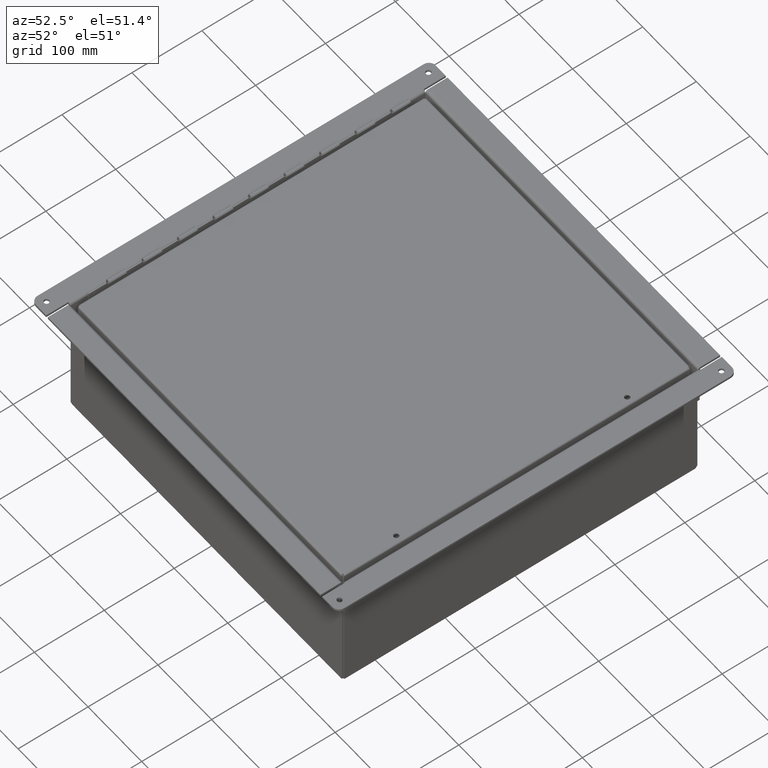
[diagram: clean part render]
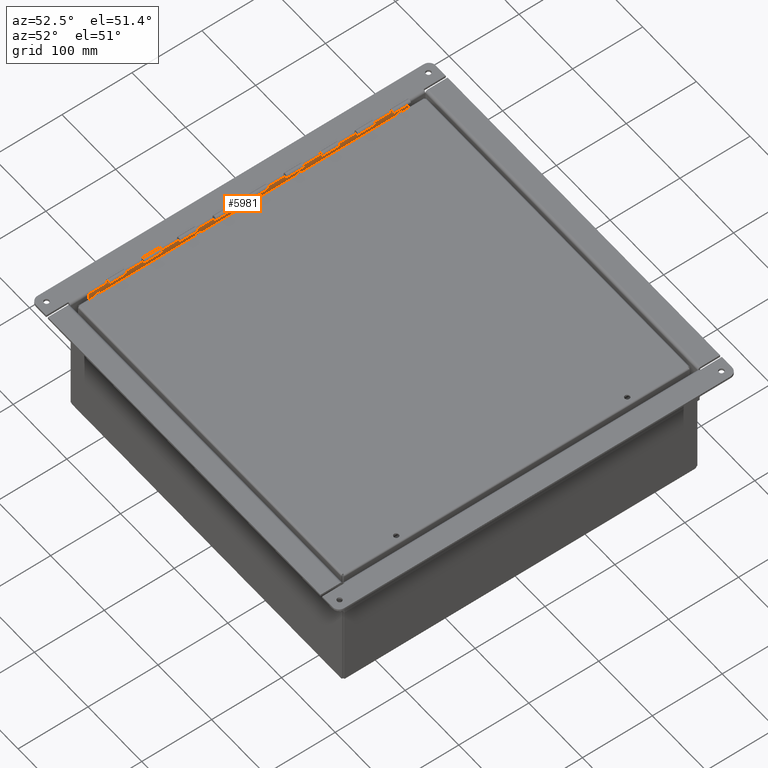
[diagram: same view with one face highlighted and labeled with its STEP entity id]
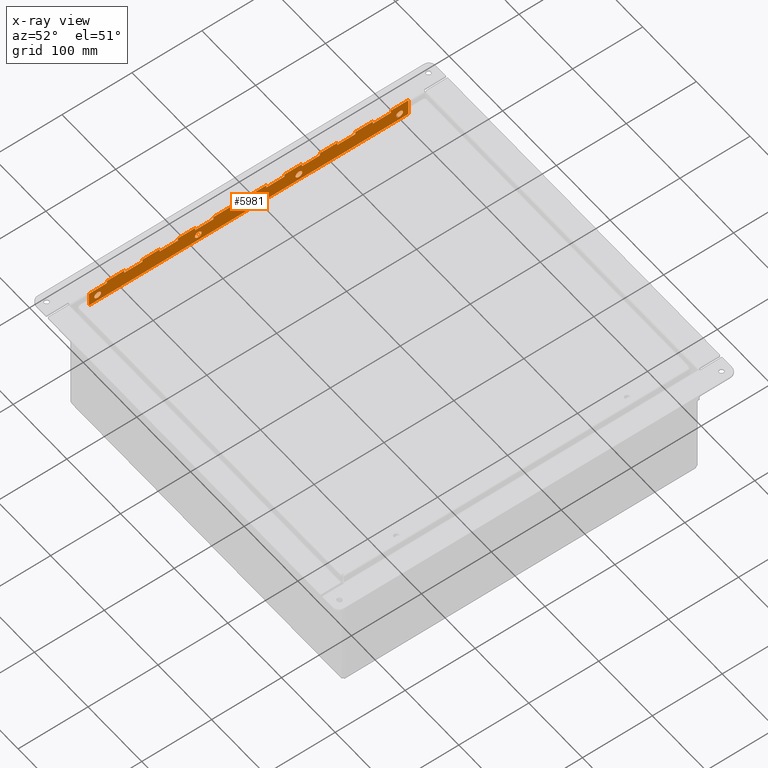
[diagram: x-ray of the same camera — body ghosted, the highlighted face saturated]
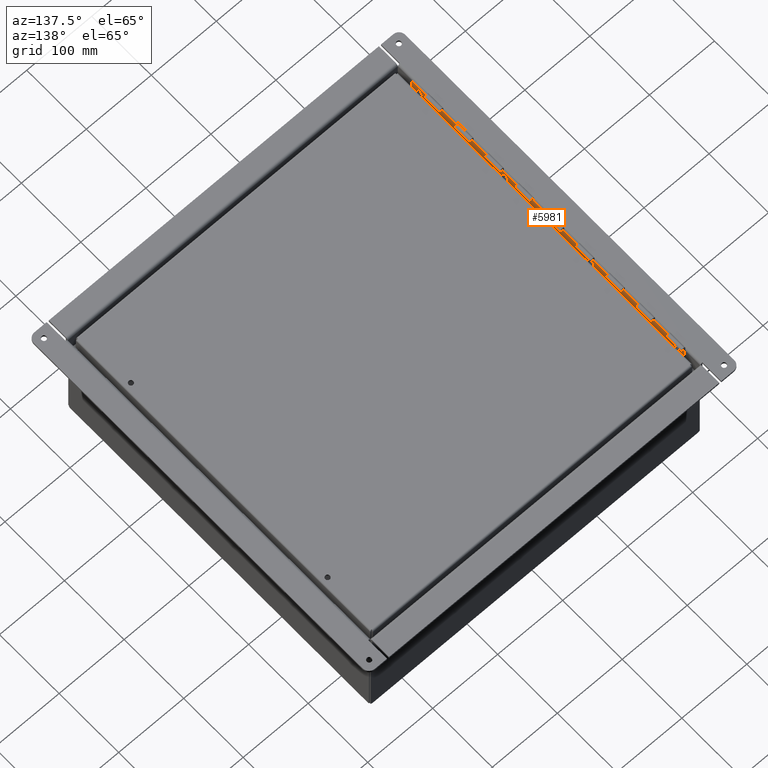
[diagram: same view with one face highlighted and labeled with its STEP entity id]
A machine part, auxiliary view. The second image highlights one B-rep face of the part: STEP entity #5981.
The next image is the same camera in x-ray: the body ghosted, the highlighted face saturated — about 0% of this face is hidden behind the body in this view.
A second angle (auxiliary view) of the same face is appended — the face is thin or edge-on in the first view.
In plain terms, the highlighted planar face has unit normal (-1, -0, 0).
Its self-contained STEP definition (entity closure, byte-faithful):
#111=FACE_BOUND($,#1250,.T.);
#112=FACE_BOUND($,#1251,.T.);
#113=FACE_BOUND($,#1252,.T.);
#114=FACE_BOUND($,#1253,.T.);
#115=FACE_BOUND($,#1254,.T.);
#192=CIRCLE($,#6300,0.1875);
#194=CIRCLE($,#6303,0.1875);
#196=CIRCLE($,#6306,0.1875);
#198=CIRCLE($,#6309,0.1875);
#561=PLANE($,#6421);
#1250=EDGE_LOOP($,(#4915));
#1251=EDGE_LOOP($,(#4916));
#1252=EDGE_LOOP($,(#4917));
#1253=EDGE_LOOP($,(#4918));
#1254=EDGE_LOOP($,(#4919,#4920,#4921,#4922,#4923,#4924,#4925,#4926,#4927,
#4928,#4929,#4930,#4931,#4932,#4933,#4934,#4935,#4936,#4937,#4938,#4939,
#4940,#4941,#4942,#4943,#4944,#4945,#4946,#4947,#4948,#4949,#4950,#4951,
#4952,#4953,#4954,#4955,#4956));
#1682=LINE($,#10281,#2230);
#1684=LINE($,#10287,#2232);
#1690=LINE($,#10299,#2238);
#1694=LINE($,#10308,#2242);
#1696=LINE($,#10314,#2244);
#1702=LINE($,#10326,#2250);
#1704=LINE($,#10332,#2252);
#1710=LINE($,#10344,#2258);
#1712=LINE($,#10350,#2260);
#1718=LINE($,#10362,#2266);
#1720=LINE($,#10368,#2268);
#1726=LINE($,#10380,#2274);
#1728=LINE($,#10386,#2276);
#1734=LINE($,#10398,#2282);
#1736=LINE($,#10404,#2284);
#1742=LINE($,#10416,#2290);
#1744=LINE($,#10422,#2292);
#1748=LINE($,#10428,#2296);
#1752=LINE($,#10443,#2300);
#1756=LINE($,#10458,#2304);
#1760=LINE($,#10473,#2308);
#1764=LINE($,#10488,#2312);
#1768=LINE($,#10503,#2316);
#1772=LINE($,#10518,#2320);
#1776=LINE($,#10533,#2324);
#1810=LINE($,#10606,#2358);
#1811=LINE($,#10610,#2359);
#1812=LINE($,#10612,#2360);
#1813=LINE($,#10614,#2361);
#1814=LINE($,#10616,#2362);
#1815=LINE($,#10618,#2363);
#1816=LINE($,#10620,#2364);
#1817=LINE($,#10622,#2365);
#1819=LINE($,#10626,#2367);
#1822=LINE($,#10633,#2370);
#1824=LINE($,#10638,#2372);
#1827=LINE($,#10643,#2375);
#1828=LINE($,#10645,#2376);
#2230=VECTOR($,#7362,0.149999999999997);
#2232=VECTOR($,#7366,0.15);
#2238=VECTOR($,#7374,0.149999999999997);
#2242=VECTOR($,#7380,0.149999999999997);
#2244=VECTOR($,#7384,0.15);
#2250=VECTOR($,#7392,0.149999999999997);
#2252=VECTOR($,#7396,0.15);
#2258=VECTOR($,#7404,0.149999999999997);
#2260=VECTOR($,#7408,0.15);
#2266=VECTOR($,#7416,0.149999999999997);
#2268=VECTOR($,#7420,0.15);
#2274=VECTOR($,#7428,0.149999999999997);
#2276=VECTOR($,#7432,0.15);
#2282=VECTOR($,#7440,0.149999999999997);
#2284=VECTOR($,#7444,0.15);
#2290=VECTOR($,#7452,0.149999999999997);
#2292=VECTOR($,#7456,0.15);
#2296=VECTOR($,#7462,1.02);
#2300=VECTOR($,#7480,1.02);
#2304=VECTOR($,#7498,1.02);
#2308=VECTOR($,#7516,1.02);
#2312=VECTOR($,#7534,1.02);
#2316=VECTOR($,#7552,1.02);
#2320=VECTOR($,#7570,1.02);
#2324=VECTOR($,#7588,1.02);
#2358=VECTOR($,#7674,0.979999999999995);
#2359=VECTOR($,#7681,0.979999999999999);
#2360=VECTOR($,#7684,0.979999999999999);
#2361=VECTOR($,#7687,0.980000000000001);
#2362=VECTOR($,#7690,0.979999999999999);
#2363=VECTOR($,#7693,0.979999999999999);
#2364=VECTOR($,#7696,0.98);
#2365=VECTOR($,#7699,0.98);
#2367=VECTOR($,#7703,1.02);
#2370=VECTOR($,#7714,0.979999999999999);
#2372=VECTOR($,#7720,0.980000000000006);
#2375=VECTOR($,#7725,0.83);
#2376=VECTOR($,#7728,18.);
#2711=VERTEX_POINT($,#10256);
#2713=VERTEX_POINT($,#10261);
#2715=VERTEX_POINT($,#10266);
#2717=VERTEX_POINT($,#10271);
#2719=VERTEX_POINT($,#10275);
#2721=VERTEX_POINT($,#10279);
#2722=VERTEX_POINT($,#10283);
#2724=VERTEX_POINT($,#10286);
#2727=VERTEX_POINT($,#10293);
#2729=VERTEX_POINT($,#10297);
#2731=VERTEX_POINT($,#10302);
#2733=VERTEX_POINT($,#10306);
#2734=VERTEX_POINT($,#10310);
#2736=VERTEX_POINT($,#10313);
#2739=VERTEX_POINT($,#10320);
#2741=VERTEX_POINT($,#10324);
#2742=VERTEX_POINT($,#10328);
#2744=VERTEX_POINT($,#10331);
#2747=VERTEX_POINT($,#10338);
#2749=VERTEX_POINT($,#10342);
#2750=VERTEX_POINT($,#10346);
#2752=VERTEX_POINT($,#10349);
#2755=VERTEX_POINT($,#10356);
#2757=VERTEX_POINT($,#10360);
#2758=VERTEX_POINT($,#10364);
#2760=VERTEX_POINT($,#10367);
#2763=VERTEX_POINT($,#10374);
#2765=VERTEX_POINT($,#10378);
#2766=VERTEX_POINT($,#10382);
#2768=VERTEX_POINT($,#10385);
#2771=VERTEX_POINT($,#10392);
#2773=VERTEX_POINT($,#10396);
#2774=VERTEX_POINT($,#10400);
#2776=VERTEX_POINT($,#10403);
#2779=VERTEX_POINT($,#10410);
#2781=VERTEX_POINT($,#10414);
#2782=VERTEX_POINT($,#10418);
#2784=VERTEX_POINT($,#10421);
#2826=VERTEX_POINT($,#10605);
#2827=VERTEX_POINT($,#10624);
#2828=VERTEX_POINT($,#10637);
#2829=VERTEX_POINT($,#10641);
#3363=EDGE_CURVE($,#2711,#2711,#192,.T.);
#3365=EDGE_CURVE($,#2713,#2713,#194,.T.);
#3367=EDGE_CURVE($,#2715,#2715,#196,.T.);
#3369=EDGE_CURVE($,#2717,#2717,#198,.T.);
#3373=EDGE_CURVE($,#2719,#2721,#1682,.T.);
#3375=EDGE_CURVE($,#2724,#2722,#1684,.T.);
#3381=EDGE_CURVE($,#2727,#2729,#1690,.T.);
#3385=EDGE_CURVE($,#2731,#2733,#1694,.T.);
#3387=EDGE_CURVE($,#2736,#2734,#1696,.T.);
#3393=EDGE_CURVE($,#2739,#2741,#1702,.T.);
#3395=EDGE_CURVE($,#2744,#2742,#1704,.T.);
#3401=EDGE_CURVE($,#2747,#2749,#1710,.T.);
#3403=EDGE_CURVE($,#2752,#2750,#1712,.T.);
#3409=EDGE_CURVE($,#2755,#2757,#1718,.T.);
#3411=EDGE_CURVE($,#2760,#2758,#1720,.T.);
#3417=EDGE_CURVE($,#2763,#2765,#1726,.T.);
#3419=EDGE_CURVE($,#2768,#2766,#1728,.T.);
#3425=EDGE_CURVE($,#2771,#2773,#1734,.T.);
#3427=EDGE_CURVE($,#2776,#2774,#1736,.T.);
#3433=EDGE_CURVE($,#2779,#2781,#1742,.T.);
#3435=EDGE_CURVE($,#2784,#2782,#1744,.T.);
#3439=EDGE_CURVE($,#2721,#2784,#1748,.T.);
#3447=EDGE_CURVE($,#2781,#2776,#1752,.T.);
#3455=EDGE_CURVE($,#2773,#2768,#1756,.T.);
#3463=EDGE_CURVE($,#2765,#2760,#1760,.T.);
#3471=EDGE_CURVE($,#2757,#2752,#1764,.T.);
#3479=EDGE_CURVE($,#2749,#2744,#1768,.T.);
#3487=EDGE_CURVE($,#2741,#2736,#1772,.T.);
#3495=EDGE_CURVE($,#2733,#2724,#1776,.T.);
#3535=EDGE_CURVE($,#2826,#2719,#1810,.T.);
#3538=EDGE_CURVE($,#2722,#2727,#1811,.T.);
#3539=EDGE_CURVE($,#2734,#2731,#1812,.T.);
#3540=EDGE_CURVE($,#2742,#2739,#1813,.T.);
#3541=EDGE_CURVE($,#2750,#2747,#1814,.T.);
#3542=EDGE_CURVE($,#2758,#2755,#1815,.T.);
#3543=EDGE_CURVE($,#2766,#2763,#1816,.T.);
#3544=EDGE_CURVE($,#2774,#2771,#1817,.T.);
#3546=EDGE_CURVE($,#2729,#2827,#1819,.T.);
#3549=EDGE_CURVE($,#2782,#2779,#1822,.T.);
#3551=EDGE_CURVE($,#2826,#2828,#1824,.T.);
#3554=EDGE_CURVE($,#2829,#2827,#1827,.T.);
#3555=EDGE_CURVE($,#2828,#2829,#1828,.T.);
#4915=ORIENTED_EDGE($,*,*,#3363,.T.);
#4916=ORIENTED_EDGE($,*,*,#3365,.T.);
#4917=ORIENTED_EDGE($,*,*,#3367,.T.);
#4918=ORIENTED_EDGE($,*,*,#3369,.T.);
#4919=ORIENTED_EDGE($,*,*,#3435,.T.);
#4920=ORIENTED_EDGE($,*,*,#3549,.T.);
#4921=ORIENTED_EDGE($,*,*,#3433,.T.);
#4922=ORIENTED_EDGE($,*,*,#3447,.T.);
#4923=ORIENTED_EDGE($,*,*,#3427,.T.);
#4924=ORIENTED_EDGE($,*,*,#3544,.T.);
#4925=ORIENTED_EDGE($,*,*,#3425,.T.);
#4926=ORIENTED_EDGE($,*,*,#3455,.T.);
#4927=ORIENTED_EDGE($,*,*,#3419,.T.);
#4928=ORIENTED_EDGE($,*,*,#3543,.T.);
#4929=ORIENTED_EDGE($,*,*,#3417,.T.);
#4930=ORIENTED_EDGE($,*,*,#3463,.T.);
#4931=ORIENTED_EDGE($,*,*,#3411,.T.);
#4932=ORIENTED_EDGE($,*,*,#3542,.T.);
#4933=ORIENTED_EDGE($,*,*,#3409,.T.);
#4934=ORIENTED_EDGE($,*,*,#3471,.T.);
#4935=ORIENTED_EDGE($,*,*,#3403,.T.);
#4936=ORIENTED_EDGE($,*,*,#3541,.T.);
#4937=ORIENTED_EDGE($,*,*,#3401,.T.);
#4938=ORIENTED_EDGE($,*,*,#3479,.T.);
#4939=ORIENTED_EDGE($,*,*,#3395,.T.);
#4940=ORIENTED_EDGE($,*,*,#3540,.T.);
#4941=ORIENTED_EDGE($,*,*,#3393,.T.);
#4942=ORIENTED_EDGE($,*,*,#3487,.T.);
#4943=ORIENTED_EDGE($,*,*,#3387,.T.);
#4944=ORIENTED_EDGE($,*,*,#3539,.T.);
#4945=ORIENTED_EDGE($,*,*,#3385,.T.);
#4946=ORIENTED_EDGE($,*,*,#3495,.T.);
#4947=ORIENTED_EDGE($,*,*,#3375,.T.);
#4948=ORIENTED_EDGE($,*,*,#3538,.T.);
#4949=ORIENTED_EDGE($,*,*,#3381,.T.);
#4950=ORIENTED_EDGE($,*,*,#3546,.T.);
#4951=ORIENTED_EDGE($,*,*,#3554,.F.);
#4952=ORIENTED_EDGE($,*,*,#3555,.F.);
#4953=ORIENTED_EDGE($,*,*,#3551,.F.);
#4954=ORIENTED_EDGE($,*,*,#3535,.T.);
#4955=ORIENTED_EDGE($,*,*,#3373,.T.);
#4956=ORIENTED_EDGE($,*,*,#3439,.T.);
#5981=ADVANCED_FACE($,(#111,#112,#113,#114,#115),#561,.F.);
#6300=AXIS2_PLACEMENT_3D($,#10257,#7337,#7338);
#6303=AXIS2_PLACEMENT_3D($,#10262,#7343,#7344);
#6306=AXIS2_PLACEMENT_3D($,#10267,#7349,#7350);
#6309=AXIS2_PLACEMENT_3D($,#10272,#7355,#7356);
#6421=AXIS2_PLACEMENT_3D($,#10646,#7729,#7730);
#7337=DIRECTION('center_axis',(0.,0.,1.));
#7338=DIRECTION('ref_axis',(-1.,0.,0.));
#7343=DIRECTION('center_axis',(0.,0.,1.));
#7344=DIRECTION('ref_axis',(-1.,0.,0.));
#7349=DIRECTION('center_axis',(0.,0.,1.));
#7350=DIRECTION('ref_axis',(-1.,0.,0.));
#7355=DIRECTION('center_axis',(0.,0.,1.));
#7356=DIRECTION('ref_axis',(-1.,0.,0.));
#7362=DIRECTION($,(0.,-1.,0.));
#7366=DIRECTION($,(0.,1.,0.));
#7374=DIRECTION($,(0.,-1.,0.));
#7380=DIRECTION($,(0.,-1.,0.));
#7384=DIRECTION($,(0.,1.,0.));
#7392=DIRECTION($,(0.,-1.,0.));
#7396=DIRECTION($,(0.,1.,0.));
#7404=DIRECTION($,(0.,-1.,0.));
#7408=DIRECTION($,(0.,1.,0.));
#7416=DIRECTION($,(0.,-1.,0.));
#7420=DIRECTION($,(0.,1.,0.));
#7428=DIRECTION($,(0.,-1.,0.));
#7432=DIRECTION($,(0.,1.,0.));
#7440=DIRECTION($,(0.,-1.,0.));
#7444=DIRECTION($,(0.,1.,0.));
#7452=DIRECTION($,(0.,-1.,0.));
#7456=DIRECTION($,(0.,1.,0.));
#7462=DIRECTION($,(1.,-3.25679133362328E-015,0.));
#7480=DIRECTION($,(1.,-3.25679133362328E-015,0.));
#7498=DIRECTION($,(1.,-3.25679133362328E-015,0.));
#7516=DIRECTION($,(1.,-3.25679133362328E-015,0.));
#7534=DIRECTION($,(1.,-3.25679133362328E-015,0.));
#7552=DIRECTION($,(1.,-3.25679133362328E-015,0.));
#7570=DIRECTION($,(1.,-3.25679133362328E-015,0.));
#7588=DIRECTION($,(1.,-3.25679133362328E-015,0.));
#7674=DIRECTION($,(1.,-3.20536831256607E-016,0.));
#7681=DIRECTION($,(1.,-3.20536831256607E-016,0.));
#7684=DIRECTION($,(1.,-3.20536831256607E-016,0.));
#7687=DIRECTION($,(1.,-3.20536831256607E-016,0.));
#7690=DIRECTION($,(1.,-3.20536831256607E-016,0.));
#7693=DIRECTION($,(1.,-3.20536831256607E-016,0.));
#7696=DIRECTION($,(1.,-3.20536831256607E-016,0.));
#7699=DIRECTION($,(1.,-3.20536831256607E-016,0.));
#7703=DIRECTION($,(1.,-3.25679133362328E-015,0.));
#7714=DIRECTION($,(1.,-3.20536831256607E-016,0.));
#7720=DIRECTION($,(-2.57494091076427E-017,-1.,0.));
#7725=DIRECTION($,(0.,1.,0.));
#7728=DIRECTION($,(1.,0.,0.));
#7729=DIRECTION('center_axis',(0.,0.,1.));
#7730=DIRECTION('ref_axis',(1.,0.,0.));
#10256=CARTESIAN_POINT('',(0.311499999999999,0.375,-1.09273919746571E-017));
#10257=CARTESIAN_POINT('Origin',(0.498999999999999,0.375,0.));
#10261=CARTESIAN_POINT('',(5.9785,0.375,-1.09273919746571E-017));
#10262=CARTESIAN_POINT('Origin',(6.166,0.375,0.));
#10266=CARTESIAN_POINT('',(11.6455,0.375,-1.09273919746571E-017));
#10267=CARTESIAN_POINT('Origin',(11.833,0.375,0.));
#10271=CARTESIAN_POINT('',(17.3125,0.375,-1.09273919746571E-017));
#10272=CARTESIAN_POINT('Origin',(17.5,0.375,0.));
#10275=CARTESIAN_POINT('',(0.979999999999999,0.980000000000005,-1.09273919746571E-017));
#10279=CARTESIAN_POINT('',(0.979999999999999,0.830000000000008,-6.49323907808567E-016));
#10281=CARTESIAN_POINT($,(0.979999999999999,0.691250000000005,-1.09273919746571E-017));
#10283=CARTESIAN_POINT('',(16.,0.980000000000001,-1.09273919746571E-017));
#10286=CARTESIAN_POINT('',(16.,0.830000000000001,-9.07269564538958E-017));
#10287=CARTESIAN_POINT($,(16.,0.766250000000001,-1.09273919746571E-017));
#10293=CARTESIAN_POINT('',(16.98,0.98,-1.09273919746571E-017));
#10297=CARTESIAN_POINT('',(16.98,0.830000000000003,-1.09273919746571E-017));
#10299=CARTESIAN_POINT($,(16.98,0.691250000000002,-1.09273919746571E-017));
#10302=CARTESIAN_POINT('',(14.98,0.980000000000001,-1.09273919746571E-017));
#10306=CARTESIAN_POINT('',(14.98,0.830000000000004,-9.07269564538958E-017));
#10308=CARTESIAN_POINT($,(14.98,0.691250000000003,-1.09273919746571E-017));
#10310=CARTESIAN_POINT('',(14.,0.980000000000001,-1.09273919746571E-017));
#10313=CARTESIAN_POINT('',(14.,0.830000000000001,-1.70526520933135E-016));
#10314=CARTESIAN_POINT($,(14.,0.766250000000001,-1.09273919746571E-017));
#10320=CARTESIAN_POINT('',(12.98,0.980000000000001,-1.09273919746571E-017));
#10324=CARTESIAN_POINT('',(12.98,0.830000000000005,-1.70526520933135E-016));
#10326=CARTESIAN_POINT($,(12.98,0.691250000000003,-1.09273919746571E-017));
#10328=CARTESIAN_POINT('',(12.,0.980000000000002,-1.09273919746571E-017));
#10331=CARTESIAN_POINT('',(12.,0.830000000000002,-2.50326085412373E-016));
#10332=CARTESIAN_POINT($,(12.,0.766250000000002,-1.09273919746571E-017));
#10338=CARTESIAN_POINT('',(10.98,0.980000000000002,-1.09273919746571E-017));
#10342=CARTESIAN_POINT('',(10.98,0.830000000000005,-2.50326085412373E-016));
#10344=CARTESIAN_POINT($,(10.98,0.691250000000003,-1.09273919746571E-017));
#10346=CARTESIAN_POINT('',(10.,0.980000000000003,-1.09273919746571E-017));
#10349=CARTESIAN_POINT('',(10.,0.830000000000003,-3.30125649891612E-016));
#10350=CARTESIAN_POINT($,(10.,0.766250000000002,-1.09273919746571E-017));
#10356=CARTESIAN_POINT('',(8.98,0.980000000000003,-1.09273919746571E-017));
#10360=CARTESIAN_POINT('',(8.98,0.830000000000006,-3.30125649891612E-016));
#10362=CARTESIAN_POINT($,(8.98,0.691250000000004,-1.09273919746571E-017));
#10364=CARTESIAN_POINT('',(8.,0.980000000000003,-1.09273919746571E-017));
#10367=CARTESIAN_POINT('',(8.,0.830000000000003,-4.09925214370851E-016));
#10368=CARTESIAN_POINT($,(8.,0.766250000000002,-1.09273919746571E-017));
#10374=CARTESIAN_POINT('',(6.98,0.980000000000003,-1.09273919746571E-017));
#10378=CARTESIAN_POINT('',(6.98,0.830000000000006,-4.09925214370851E-016));
#10380=CARTESIAN_POINT($,(6.98,0.691250000000004,-1.09273919746571E-017));
#10382=CARTESIAN_POINT('',(6.,0.980000000000004,-1.09273919746571E-017));
#10385=CARTESIAN_POINT('',(6.,0.830000000000004,-4.8972477885009E-016));
#10386=CARTESIAN_POINT($,(6.,0.766250000000003,-1.09273919746571E-017));
#10392=CARTESIAN_POINT('',(4.98,0.980000000000004,-1.09273919746571E-017));
#10396=CARTESIAN_POINT('',(4.98,0.830000000000007,-4.8972477885009E-016));
#10398=CARTESIAN_POINT($,(4.98,0.691250000000004,-1.09273919746571E-017));
#10400=CARTESIAN_POINT('',(4.,0.980000000000004,-1.09273919746571E-017));
#10403=CARTESIAN_POINT('',(4.,0.830000000000005,-5.69524343329329E-016));
#10404=CARTESIAN_POINT($,(4.,0.766250000000003,-1.09273919746571E-017));
#10410=CARTESIAN_POINT('',(2.98,0.980000000000005,-1.09273919746571E-017));
#10414=CARTESIAN_POINT('',(2.98,0.830000000000008,-5.69524343329329E-016));
#10416=CARTESIAN_POINT($,(2.98,0.691250000000005,-1.09273919746571E-017));
#10418=CARTESIAN_POINT('',(2.,0.980000000000005,-1.09273919746571E-017));
#10421=CARTESIAN_POINT('',(2.,0.830000000000005,-6.49323907808567E-016));
#10422=CARTESIAN_POINT($,(2.,0.766250000000003,-1.09273919746571E-017));
#10428=CARTESIAN_POINT($,(5.5,0.829999999999994,-1.09273919746571E-017));
#10443=CARTESIAN_POINT($,(6.5,0.829999999999996,-1.09273919746571E-017));
#10458=CARTESIAN_POINT($,(7.5,0.829999999999999,-1.09273919746571E-017));
#10473=CARTESIAN_POINT($,(8.5,0.830000000000001,-1.09273919746571E-017));
#10488=CARTESIAN_POINT($,(9.5,0.830000000000004,-1.09273919746571E-017));
#10503=CARTESIAN_POINT($,(10.5,0.830000000000007,-1.09273919746571E-017));
#10518=CARTESIAN_POINT($,(11.5,0.830000000000009,-1.09273919746571E-017));
#10533=CARTESIAN_POINT($,(12.5,0.830000000000012,-1.09273919746571E-017));
#10605=CARTESIAN_POINT('',(2.7974123455122E-015,0.980000000000006,-2.18547839493141E-017));
#10606=CARTESIAN_POINT($,(4.5,0.980000000000004,-1.09273919746571E-017));
#10610=CARTESIAN_POINT($,(4.5,0.980000000000004,-1.09273919746571E-017));
#10612=CARTESIAN_POINT($,(4.5,0.980000000000004,-1.09273919746571E-017));
#10614=CARTESIAN_POINT($,(4.5,0.980000000000004,-1.09273919746571E-017));
#10616=CARTESIAN_POINT($,(4.5,0.980000000000004,-1.09273919746571E-017));
#10618=CARTESIAN_POINT($,(4.5,0.980000000000004,-1.09273919746571E-017));
#10620=CARTESIAN_POINT($,(4.5,0.980000000000004,-1.09273919746571E-017));
#10622=CARTESIAN_POINT($,(4.5,0.980000000000004,-1.09273919746571E-017));
#10624=CARTESIAN_POINT('',(18.,0.83,-1.09273919746571E-017));
#10626=CARTESIAN_POINT($,(13.5,0.830000000000015,-1.09273919746571E-017));
#10633=CARTESIAN_POINT($,(4.5,0.980000000000004,-1.09273919746571E-017));
#10637=CARTESIAN_POINT('',(4.00671039070758E-017,0.,-1.09273919746571E-017));
#10638=CARTESIAN_POINT($,(6.85202009710209E-017,1.10500000000001,-1.09273919746571E-017));
#10641=CARTESIAN_POINT('',(18.,0.,-1.09273919746571E-017));
#10643=CARTESIAN_POINT($,(18.,0.,-1.09273919746571E-017));
#10645=CARTESIAN_POINT($,(4.00671039070758E-017,0.,-1.09273919746571E-017));
#10646=CARTESIAN_POINT('Origin',(9.,0.552500000000001,-1.09273919746571E-017));